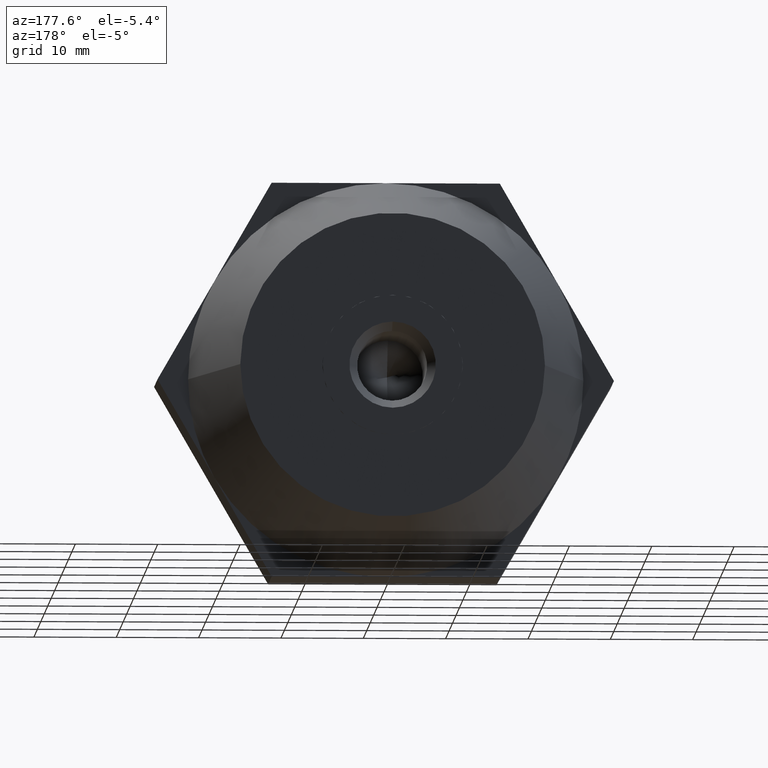
[diagram: clean part render]
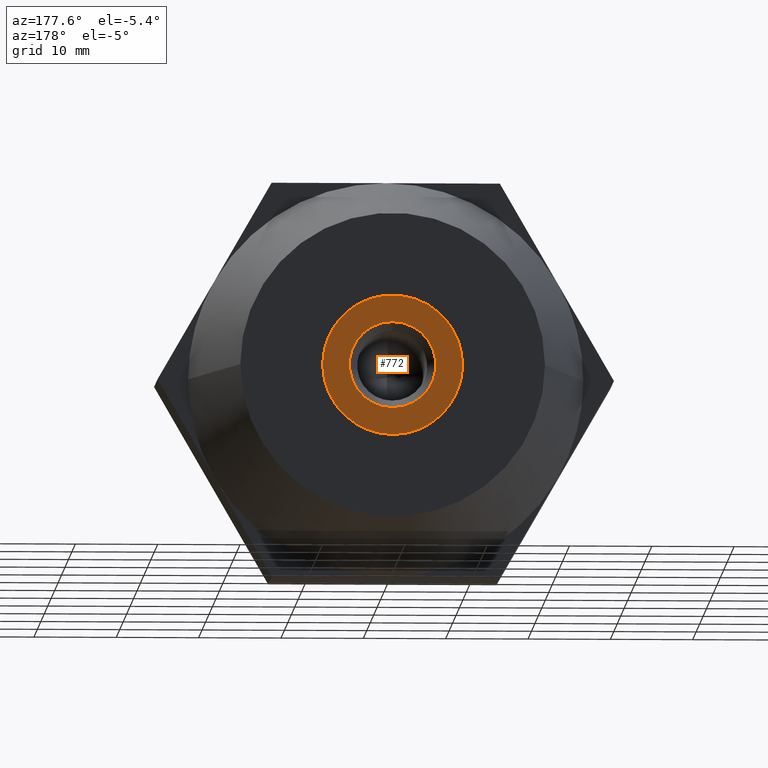
[diagram: same view with one face highlighted and labeled with its STEP entity id]
A machine part, auxiliary view. The second image highlights one B-rep face of the part: STEP entity #772.
In plain terms, the highlighted planar face has unit normal (0, 1, 0).
Its self-contained STEP definition (entity closure, byte-faithful):
#147 = CARTESIAN_POINT ( 'NONE',  ( -4.250000000000000000, 17.00000000000000000, -7.361215932167730200 ) ) ;
#163 = AXIS2_PLACEMENT_3D ( 'NONE', #3680, #2460, #921 ) ;
#176 = EDGE_CURVE ( 'NONE', #2308, #958, #2354, .T. ) ;
#278 = CIRCLE ( 'NONE', #1957, 8.500000000000000000 ) ;
#281 = EDGE_CURVE ( 'NONE', #1986, #3882, #2403, .T. ) ;
#322 = DIRECTION ( 'NONE',  ( 2.664535259100376100E-015, 0.0000000000000000000, 1.000000000000000000 ) ) ;
#418 = AXIS2_PLACEMENT_3D ( 'NONE', #1315, #2796, #3150 ) ;
#518 = CARTESIAN_POINT ( 'NONE',  ( -8.500000000000000000, 17.00000000000000000, 0.0000000000000000000 ) ) ;
#542 = DIRECTION ( 'NONE',  ( 0.0000000000000000000, 1.000000000000000000, 0.0000000000000000000 ) ) ;
#608 = CARTESIAN_POINT ( 'NONE',  ( 0.0000000000000000000, 17.00000000000000000, 0.0000000000000000000 ) ) ;
#662 = CARTESIAN_POINT ( 'NONE',  ( 0.0000000000000000000, 17.00000000000000000, 0.0000000000000000000 ) ) ;
#768 = EDGE_CURVE ( 'NONE', #958, #2308, #2399, .T. ) ;
#770 = VERTEX_POINT ( 'NONE', #827 ) ;
#772 = ADVANCED_FACE ( 'NONE', ( #2500, #1587 ), #3878, .T. ) ;
#813 = ORIENTED_EDGE ( 'NONE', *, *, #2123, .F. ) ;
#827 = CARTESIAN_POINT ( 'NONE',  ( 0.0000000000000000000, 17.00000000000000000, -8.500000000000001800 ) ) ;
#852 = ORIENTED_EDGE ( 'NONE', *, *, #281, .F. ) ;
#859 = CARTESIAN_POINT ( 'NONE',  ( 0.0000000000000000000, 17.00000000000000000, 0.0000000000000000000 ) ) ;
#883 = DIRECTION ( 'NONE',  ( -0.0000000000000000000, -1.000000000000000000, -0.0000000000000000000 ) ) ;
#921 = DIRECTION ( 'NONE',  ( -1.776356839400250500E-015, 0.0000000000000000000, 1.000000000000000000 ) ) ;
#930 = DIRECTION ( 'NONE',  ( 0.0000000000000000000, 1.000000000000000000, 0.0000000000000000000 ) ) ;
#934 = DIRECTION ( 'NONE',  ( -0.0000000000000000000, -1.000000000000000000, -0.0000000000000000000 ) ) ;
#958 = VERTEX_POINT ( 'NONE', #3776 ) ;
#1092 = AXIS2_PLACEMENT_3D ( 'NONE', #859, #3609, #3648 ) ;
#1131 = CARTESIAN_POINT ( 'NONE',  ( 0.0000000000000000000, 17.00000000000000000, 0.0000000000000000000 ) ) ;
#1158 = CARTESIAN_POINT ( 'NONE',  ( 0.0000000000000000000, 17.00000000000000000, 0.0000000000000000000 ) ) ;
#1184 = CARTESIAN_POINT ( 'NONE',  ( 4.250000000000000000, 17.00000000000000000, 7.361215932167730200 ) ) ;
#1268 = CARTESIAN_POINT ( 'NONE',  ( 0.0000000000000000000, 17.00000000000000000, 5.250000000000000000 ) ) ;
#1310 = CIRCLE ( 'NONE', #1092, 8.500000000000000000 ) ;
#1315 = CARTESIAN_POINT ( 'NONE',  ( 0.0000000000000000000, 17.00000000000000000, 0.0000000000000000000 ) ) ;
#1345 = CIRCLE ( 'NONE', #3577, 8.500000000000000000 ) ;
#1354 = CIRCLE ( 'NONE', #1507, 8.500000000000000000 ) ;
#1501 = EDGE_CURVE ( 'NONE', #3882, #3972, #1622, .T. ) ;
#1507 = AXIS2_PLACEMENT_3D ( 'NONE', #3668, #934, #322 ) ;
#1587 = FACE_BOUND ( 'NONE', #1665, .T. ) ;
#1622 = CIRCLE ( 'NONE', #3057, 8.500000000000000000 ) ;
#1658 = ORIENTED_EDGE ( 'NONE', *, *, #3152, .F. ) ;
#1665 = EDGE_LOOP ( 'NONE', ( #3702, #1680 ) ) ;
#1680 = ORIENTED_EDGE ( 'NONE', *, *, #768, .F. ) ;
#1710 = DIRECTION ( 'NONE',  ( 0.0000000000000000000, 0.0000000000000000000, 1.000000000000000000 ) ) ;
#1763 = ORIENTED_EDGE ( 'NONE', *, *, #3558, .F. ) ;
#1809 = AXIS2_PLACEMENT_3D ( 'NONE', #3274, #2077, #3585 ) ;
#1893 = CARTESIAN_POINT ( 'NONE',  ( -4.250000000000000000, 17.00000000000000000, 7.361215932167730200 ) ) ;
#1957 = AXIS2_PLACEMENT_3D ( 'NONE', #662, #3400, #3427 ) ;
#1986 = VERTEX_POINT ( 'NONE', #3736 ) ;
#2077 = DIRECTION ( 'NONE',  ( 0.0000000000000000000, 1.000000000000000000, 0.0000000000000000000 ) ) ;
#2123 = EDGE_CURVE ( 'NONE', #3972, #3671, #1345, .T. ) ;
#2142 = VERTEX_POINT ( 'NONE', #518 ) ;
#2255 = ORIENTED_EDGE ( 'NONE', *, *, #1501, .F. ) ;
#2308 = VERTEX_POINT ( 'NONE', #1268 ) ;
#2337 = ORIENTED_EDGE ( 'NONE', *, *, #3405, .F. ) ;
#2354 = CIRCLE ( 'NONE', #2762, 5.250000000000000000 ) ;
#2399 = CIRCLE ( 'NONE', #2890, 5.250000000000000000 ) ;
#2403 = CIRCLE ( 'NONE', #163, 8.500000000000000000 ) ;
#2421 = DIRECTION ( 'NONE',  ( 0.0000000000000000000, 0.0000000000000000000, 1.000000000000000000 ) ) ;
#2460 = DIRECTION ( 'NONE',  ( -0.0000000000000000000, -1.000000000000000000, -0.0000000000000000000 ) ) ;
#2500 = FACE_OUTER_BOUND ( 'NONE', #3379, .T. ) ;
#2601 = CIRCLE ( 'NONE', #418, 8.500000000000000000 ) ;
#2685 = ORIENTED_EDGE ( 'NONE', *, *, #3618, .F. ) ;
#2762 = AXIS2_PLACEMENT_3D ( 'NONE', #608, #930, #3069 ) ;
#2796 = DIRECTION ( 'NONE',  ( -0.0000000000000000000, -1.000000000000000000, -0.0000000000000000000 ) ) ;
#2890 = AXIS2_PLACEMENT_3D ( 'NONE', #1131, #542, #1710 ) ;
#3047 = DIRECTION ( 'NONE',  ( -0.0000000000000000000, -1.000000000000000000, -0.0000000000000000000 ) ) ;
#3057 = AXIS2_PLACEMENT_3D ( 'NONE', #1158, #883, #3296 ) ;
#3069 = DIRECTION ( 'NONE',  ( 0.0000000000000000000, 0.0000000000000000000, 1.000000000000000000 ) ) ;
#3150 = DIRECTION ( 'NONE',  ( 0.0000000000000000000, 0.0000000000000000000, 1.000000000000000000 ) ) ;
#3152 = EDGE_CURVE ( 'NONE', #2142, #3791, #278, .T. ) ;
#3213 = CARTESIAN_POINT ( 'NONE',  ( 0.0000000000000000000, 17.00000000000000000, 0.0000000000000000000 ) ) ;
#3260 = CARTESIAN_POINT ( 'NONE',  ( 8.500000000000000000, 17.00000000000000000, -3.004629197474319600E-015 ) ) ;
#3274 = CARTESIAN_POINT ( 'NONE',  ( 0.0000000000000000000, 17.00000000000000000, 0.0000000000000000000 ) ) ;
#3296 = DIRECTION ( 'NONE',  ( 3.552713678800500900E-015, 0.0000000000000000000, 1.000000000000000000 ) ) ;
#3379 = EDGE_LOOP ( 'NONE', ( #2685, #813, #2255, #852, #2337, #1763, #1658 ) ) ;
#3400 = DIRECTION ( 'NONE',  ( -0.0000000000000000000, -1.000000000000000000, -0.0000000000000000000 ) ) ;
#3405 = EDGE_CURVE ( 'NONE', #770, #1986, #1310, .T. ) ;
#3427 = DIRECTION ( 'NONE',  ( 0.0000000000000000000, 0.0000000000000000000, 1.000000000000000000 ) ) ;
#3558 = EDGE_CURVE ( 'NONE', #3791, #770, #1354, .T. ) ;
#3577 = AXIS2_PLACEMENT_3D ( 'NONE', #3213, #3047, #2421 ) ;
#3585 = DIRECTION ( 'NONE',  ( 0.0000000000000000000, 0.0000000000000000000, 1.000000000000000000 ) ) ;
#3609 = DIRECTION ( 'NONE',  ( -0.0000000000000000000, -1.000000000000000000, -0.0000000000000000000 ) ) ;
#3618 = EDGE_CURVE ( 'NONE', #3671, #2142, #2601, .T. ) ;
#3648 = DIRECTION ( 'NONE',  ( 0.0000000000000000000, 0.0000000000000000000, 1.000000000000000000 ) ) ;
#3668 = CARTESIAN_POINT ( 'NONE',  ( 0.0000000000000000000, 17.00000000000000000, 0.0000000000000000000 ) ) ;
#3671 = VERTEX_POINT ( 'NONE', #1893 ) ;
#3680 = CARTESIAN_POINT ( 'NONE',  ( 0.0000000000000000000, 17.00000000000000000, 0.0000000000000000000 ) ) ;
#3702 = ORIENTED_EDGE ( 'NONE', *, *, #176, .F. ) ;
#3736 = CARTESIAN_POINT ( 'NONE',  ( 4.250000000000000000, 17.00000000000000000, -7.361215932167730200 ) ) ;
#3776 = CARTESIAN_POINT ( 'NONE',  ( 6.429395695523604200E-016, 17.00000000000000000, -5.250000000000000000 ) ) ;
#3791 = VERTEX_POINT ( 'NONE', #147 ) ;
#3878 = PLANE ( 'NONE',  #1809 ) ;
#3882 = VERTEX_POINT ( 'NONE', #3260 ) ;
#3972 = VERTEX_POINT ( 'NONE', #1184 ) ;